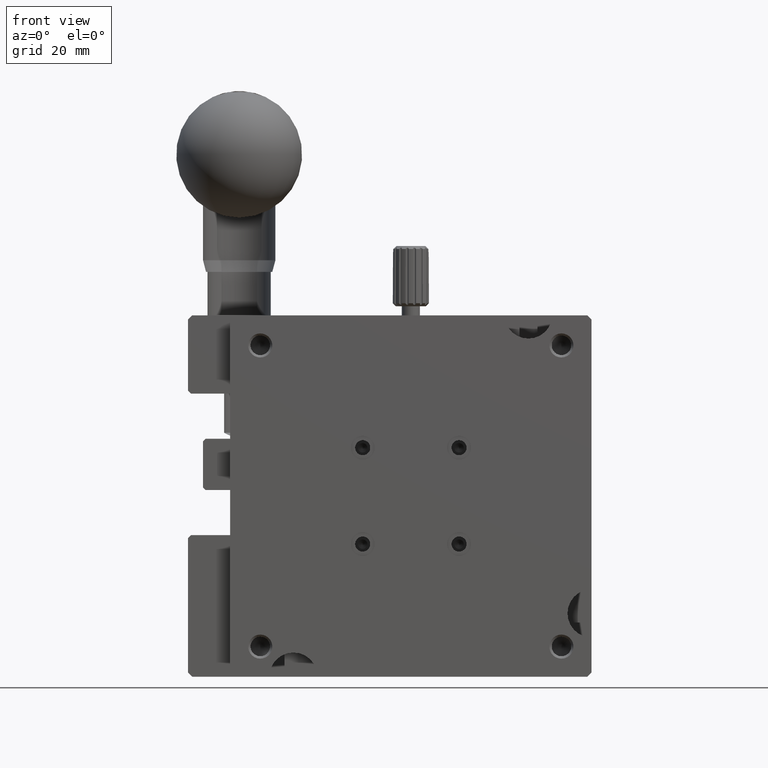
[diagram: clean part render]
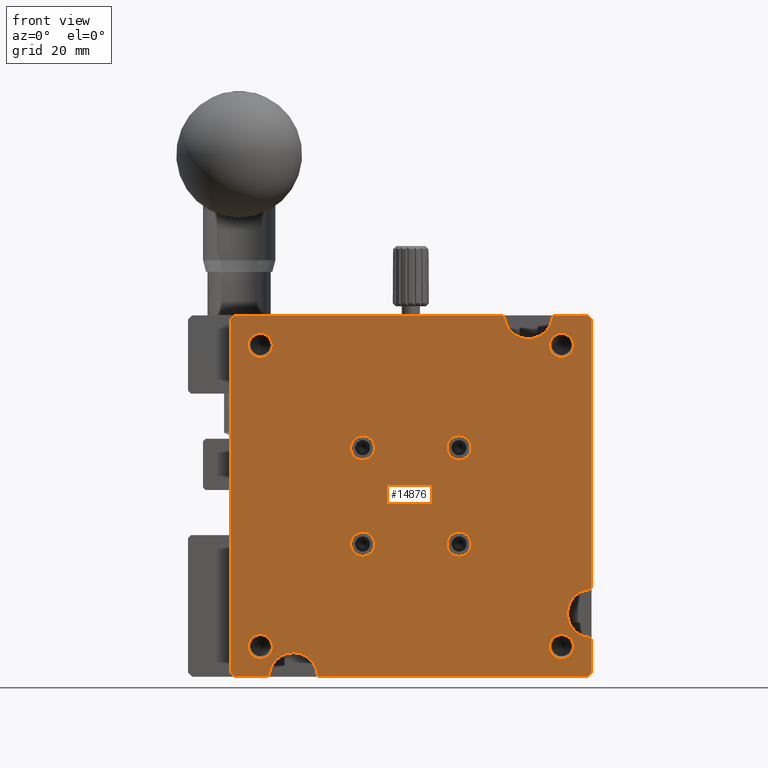
[diagram: same view with one face highlighted and labeled with its STEP entity id]
A machine part, front view. The second image highlights one B-rep face of the part: STEP entity #14876.
In plain terms, the highlighted planar face has unit normal (0, 1, 0).
Its self-contained STEP definition (entity closure, byte-faithful):
#433 = CARTESIAN_POINT ( 'NONE',  ( 59.90974984192649799, 0.000000000000000000, -49.50549683841389736 ) ) ;
#1226 = DIRECTION ( 'NONE',  ( -0.7071067811865450192, 0.000000000000000000, 0.7071067811865500152 ) ) ;
#1396 = ORIENTED_EDGE ( 'NONE', *, *, #82424, .F. ) ;
#1405 = CARTESIAN_POINT ( 'NONE',  ( 0.7100000000000079581, 0.000000000000000000, -60.00000000000000000 ) ) ;
#1500 = AXIS2_PLACEMENT_3D ( 'NONE', #44404, #4473, #4910 ) ;
#2524 = ORIENTED_EDGE ( 'NONE', *, *, #79900, .F. ) ;
#2948 = EDGE_LOOP ( 'NONE', ( #60175 ) ) ;
#3236 = EDGE_CURVE ( 'NONE', #24572, #44923, #14464, .T. ) ;
#3465 = LINE ( 'NONE', #75898, #6076 ) ;
#3985 = CIRCLE ( 'NONE', #28905, 2.000000000016370461 ) ;
#4161 = DIRECTION ( 'NONE',  ( 0.000000000000000000, -0.000000000000000000, 1.000000000000000000 ) ) ;
#4382 = DIRECTION ( 'NONE',  ( 0.000000000000000000, -1.000000000000000000, 0.000000000000000000 ) ) ;
#4473 = DIRECTION ( 'NONE',  ( 0.000000000000000000, -1.000000000000000000, 0.000000000000000000 ) ) ;
#4910 = DIRECTION ( 'NONE',  ( 0.000000000000000000, 0.000000000000000000, -1.000000000000000000 ) ) ;
#5116 = ORIENTED_EDGE ( 'NONE', *, *, #84618, .T. ) ;
#5292 = LINE ( 'NONE', #64321, #10922 ) ;
#5306 = VERTEX_POINT ( 'NONE', #33928 ) ;
#5602 = DIRECTION ( 'NONE',  ( 0.000000000000000000, -1.000000000000000000, 0.000000000000000000 ) ) ;
#5822 = FACE_BOUND ( 'NONE', #84821, .T. ) ;
#6076 = VECTOR ( 'NONE', #10396, 1000.000000000000114 ) ;
#6649 = DIRECTION ( 'NONE',  ( -0.000000000000000000, 0.000000000000000000, -1.000000000000000000 ) ) ;
#6801 = ORIENTED_EDGE ( 'NONE', *, *, #52243, .T. ) ;
#6903 = VECTOR ( 'NONE', #41973, 1000.000000000000114 ) ;
#7180 = DIRECTION ( 'NONE',  ( -1.000000000000000000, -0.000000000000000000, 0.000000000000000000 ) ) ;
#8106 = VERTEX_POINT ( 'NONE', #16177 ) ;
#8457 = CARTESIAN_POINT ( 'NONE',  ( 0.000000000000000000, 0.000000000000000000, 1.084202172485499997E-16 ) ) ;
#8844 = DIRECTION ( 'NONE',  ( -0.7316594712539952194, 0.000000000000000000, 0.6816703148328552286 ) ) ;
#8879 = CARTESIAN_POINT ( 'NONE',  ( 59.72000000000023334, 0.000000000000000000, -45.50999999999972090 ) ) ;
#9377 = EDGE_CURVE ( 'NONE', #50622, #50622, #61906, .T. ) ;
#9711 = CARTESIAN_POINT ( 'NONE',  ( 55.00000000000000000, 5.684341886080801487E-11, -57.00000000001637090 ) ) ;
#9997 = CIRCLE ( 'NONE', #80629, 2.000000000000001776 ) ;
#10054 = DIRECTION ( 'NONE',  ( 0.000000000000000000, 0.000000000000000000, 1.000000000000000000 ) ) ;
#10396 = DIRECTION ( 'NONE',  ( 0.7071067811865474617, 0.000000000000000000, 0.7071067811865474617 ) ) ;
#10867 = VECTOR ( 'NONE', #4161, 1000.000000000000000 ) ;
#10871 = VERTEX_POINT ( 'NONE', #19389 ) ;
#10922 = VECTOR ( 'NONE', #51304, 1000.000000000000000 ) ;
#10930 = VECTOR ( 'NONE', #42600, 1000.000000000000114 ) ;
#11267 = CIRCLE ( 'NONE', #19602, 2.000000000016370461 ) ;
#11494 = ORIENTED_EDGE ( 'NONE', *, *, #47054, .F. ) ;
#11874 = FACE_BOUND ( 'NONE', #76262, .T. ) ;
#12299 = DIRECTION ( 'NONE',  ( 0.000000000000000000, -0.000000000000000000, 1.000000000000000000 ) ) ;
#13089 = ORIENTED_EDGE ( 'NONE', *, *, #9377, .F. ) ;
#13152 = DIRECTION ( 'NONE',  ( 0.000000000000000000, 1.000000000000000000, 0.000000000000000000 ) ) ;
#13277 = VERTEX_POINT ( 'NONE', #1405 ) ;
#13627 = VERTEX_POINT ( 'NONE', #74158 ) ;
#13819 = VERTEX_POINT ( 'NONE', #47630 ) ;
#13964 = CARTESIAN_POINT ( 'NONE',  ( 60.00000000000000000, 0.000000000000000000, -0.7100000000000001865 ) ) ;
#14399 = DIRECTION ( 'NONE',  ( 0.000000000000000000, -1.000000000000000000, 0.000000000000000000 ) ) ;
#14464 = LINE ( 'NONE', #82086, #78393 ) ;
#14497 = VERTEX_POINT ( 'NONE', #47110 ) ;
#14782 = EDGE_LOOP ( 'NONE', ( #41892 ) ) ;
#14786 = DIRECTION ( 'NONE',  ( 0.000000000000000000, 0.000000000000000000, -1.000000000000000000 ) ) ;
#14876 = ADVANCED_FACE ( 'NONE', ( #51822, #5822, #11874, #71757, #39195, #18791, #65704, #31361, #39621 ), #58769, .F. ) ;
#14937 = CARTESIAN_POINT ( 'NONE',  ( 59.70000000000001705, 0.000000000000000000, -53.48800000000000665 ) ) ;
#15658 = DIRECTION ( 'NONE',  ( 0.000000000000000000, 0.000000000000000000, -1.000000000000000000 ) ) ;
#15803 = CARTESIAN_POINT ( 'NONE',  ( 59.70000000000910489, 0.000000000000000000, -45.51099999999929935 ) ) ;
#16126 = EDGE_CURVE ( 'NONE', #33878, #79592, #62737, .T. ) ;
#16177 = CARTESIAN_POINT ( 'NONE',  ( 14.78900000000000148, 0.000000000000000000, -60.00000000000000000 ) ) ;
#16497 = CARTESIAN_POINT ( 'NONE',  ( 49.50999999999999801, 0.000000000000000000, 0.1189462972740070040 ) ) ;
#17013 = VERTEX_POINT ( 'NONE', #83047 ) ;
#17405 = EDGE_LOOP ( 'NONE', ( #66917, #33285, #5116, #61746, #2524, #55381, #44358, #6801, #80315, #44916, #84230, #85662, #27058, #64877, #27664, #11494, #75721, #32925, #63277, #73615, #22436, #76773 ) ) ;
#17915 = CARTESIAN_POINT ( 'NONE',  ( 0.000000000000000000, 0.000000000000000000, -0.7100000000000009637 ) ) ;
#17964 = EDGE_CURVE ( 'NONE', #55689, #40616, #68241, .T. ) ;
#18099 = VECTOR ( 'NONE', #59381, 1000.000000000000000 ) ;
#18283 = EDGE_CURVE ( 'NONE', #65778, #65778, #3985, .T. ) ;
#18598 = CIRCLE ( 'NONE', #25534, 1.999999999948149254 ) ;
#18791 = FACE_BOUND ( 'NONE', #2948, .T. ) ;
#18979 = CARTESIAN_POINT ( 'NONE',  ( 0.000000000000000000, 0.000000000000000000, -60.00000000000000000 ) ) ;
#19389 = CARTESIAN_POINT ( 'NONE',  ( 60.00000000000000711, 0.000000000000000000, -53.78899999999999437 ) ) ;
#19602 = AXIS2_PLACEMENT_3D ( 'NONE', #72261, #79613, #40114 ) ;
#21448 = CARTESIAN_POINT ( 'NONE',  ( 59.70000000000000284, 0.000000000000000000, -53.48799999999999955 ) ) ;
#22301 = VECTOR ( 'NONE', #6649, 1000.000000000000000 ) ;
#22376 = LINE ( 'NONE', #49324, #73410 ) ;
#22436 = ORIENTED_EDGE ( 'NONE', *, *, #85682, .T. ) ;
#22597 = DIRECTION ( 'NONE',  ( 0.000000000000000000, 0.000000000000000000, -1.000000000000000000 ) ) ;
#22723 = VECTOR ( 'NONE', #70447, 1000.000000000000000 ) ;
#23672 = CARTESIAN_POINT ( 'NONE',  ( 22.00000000000000000, 0.000000000000000000, -22.00000000000000000 ) ) ;
#23811 = CARTESIAN_POINT ( 'NONE',  ( 60.00000000000000000, -2.602085213965210642E-15, -45.21000000000000085 ) ) ;
#23924 = EDGE_CURVE ( 'NONE', #48434, #77954, #56786, .T. ) ;
#24572 = VERTEX_POINT ( 'NONE', #81285 ) ;
#24695 = ORIENTED_EDGE ( 'NONE', *, *, #44040, .F. ) ;
#25033 = DIRECTION ( 'NONE',  ( 0.000000000000000000, 0.000000000000000000, -1.000000000000000000 ) ) ;
#25534 = AXIS2_PLACEMENT_3D ( 'NONE', #61704, #14399, #40886 ) ;
#26270 = CARTESIAN_POINT ( 'NONE',  ( 6.510999999999985022, -1.734723475976807094E-15, -59.69999999999998863 ) ) ;
#26350 = CIRCLE ( 'NONE', #1500, 4.000000000000003553 ) ;
#27058 = ORIENTED_EDGE ( 'NONE', *, *, #67409, .T. ) ;
#27166 = VERTEX_POINT ( 'NONE', #70687 ) ;
#27224 = LINE ( 'NONE', #73679, #6903 ) ;
#27519 = VERTEX_POINT ( 'NONE', #80889 ) ;
#27664 = ORIENTED_EDGE ( 'NONE', *, *, #67317, .T. ) ;
#27682 = EDGE_CURVE ( 'NONE', #72971, #17013, #5292, .T. ) ;
#28905 = AXIS2_PLACEMENT_3D ( 'NONE', #65913, #5602, #38983 ) ;
#29129 = DIRECTION ( 'NONE',  ( 0.000000000000000000, 1.000000000000000000, 0.000000000000000000 ) ) ;
#29580 = VERTEX_POINT ( 'NONE', #14937 ) ;
#29630 = CARTESIAN_POINT ( 'NONE',  ( 22.00000000000000000, 0.000000000000000000, -24.00000000000000000 ) ) ;
#30531 = EDGE_LOOP ( 'NONE', ( #45999 ) ) ;
#31276 = VERTEX_POINT ( 'NONE', #80307 ) ;
#31361 = FACE_BOUND ( 'NONE', #37838, .T. ) ;
#31689 = DIRECTION ( 'NONE',  ( 0.000000000000000000, -1.000000000000000000, 0.000000000000000000 ) ) ;
#32846 = LINE ( 'NONE', #18979, #18099 ) ;
#32925 = ORIENTED_EDGE ( 'NONE', *, *, #74351, .F. ) ;
#33285 = ORIENTED_EDGE ( 'NONE', *, *, #23924, .F. ) ;
#33878 = VERTEX_POINT ( 'NONE', #44760 ) ;
#33928 = CARTESIAN_POINT ( 'NONE',  ( 0.7099999999999999645, 0.000000000000000000, -5.416677968589100837E-32 ) ) ;
#34440 = DIRECTION ( 'NONE',  ( 1.000000000000000000, 0.000000000000000000, -0.000000000000000000 ) ) ;
#34640 = EDGE_LOOP ( 'NONE', ( #56540 ) ) ;
#34734 = CARTESIAN_POINT ( 'NONE',  ( 38.00000000000000000, 0.000000000000000000, -38.00000000000000000 ) ) ;
#35118 = EDGE_CURVE ( 'NONE', #13627, #13277, #45385, .T. ) ;
#36184 = LINE ( 'NONE', #69606, #50554 ) ;
#36545 = AXIS2_PLACEMENT_3D ( 'NONE', #16497, #4382, #15658 ) ;
#36745 = CIRCLE ( 'NONE', #39555, 3.999999998536091006 ) ;
#37515 = VECTOR ( 'NONE', #64192, 1000.000000000000000 ) ;
#37838 = EDGE_LOOP ( 'NONE', ( #1396 ) ) ;
#38414 = CARTESIAN_POINT ( 'NONE',  ( 0.000000000000000000, 0.000000000000000000, -60.00000000000000000 ) ) ;
#38491 = AXIS2_PLACEMENT_3D ( 'NONE', #77400, #13152, #12299 ) ;
#38511 = CARTESIAN_POINT ( 'NONE',  ( 22.00000000000000000, 0.000000000000000000, -38.00000000000000000 ) ) ;
#38665 = DIRECTION ( 'NONE',  ( 0.000000000000000000, 0.000000000000000000, -1.000000000000000000 ) ) ;
#38983 = DIRECTION ( 'NONE',  ( 0.000000000000000000, 0.000000000000000000, -1.000000000000000000 ) ) ;
#39026 = DIRECTION ( 'NONE',  ( 0.000000000000000000, 1.000000000000000000, 0.000000000000000000 ) ) ;
#39115 = EDGE_CURVE ( 'NONE', #45831, #45831, #9997, .T. ) ;
#39195 = FACE_BOUND ( 'NONE', #76248, .T. ) ;
#39381 = DIRECTION ( 'NONE',  ( 0.7071067811865500152, 0.000000000000000000, -0.7071067811865450192 ) ) ;
#39555 = AXIS2_PLACEMENT_3D ( 'NONE', #433, #39026, #65537 ) ;
#39621 = FACE_BOUND ( 'NONE', #34640, .T. ) ;
#39806 = CARTESIAN_POINT ( 'NONE',  ( 0.7100000000000009637, 0.000000000000000000, -60.00000000000000000 ) ) ;
#40114 = DIRECTION ( 'NONE',  ( 0.000000000000000000, 0.000000000000000000, -1.000000000000000000 ) ) ;
#40141 = VECTOR ( 'NONE', #7180, 1000.000000000000000 ) ;
#40424 = AXIS2_PLACEMENT_3D ( 'NONE', #43465, #29129, #10054 ) ;
#40616 = VERTEX_POINT ( 'NONE', #23811 ) ;
#40886 = DIRECTION ( 'NONE',  ( 0.000000000000000000, 0.000000000000000000, -1.000000000000000000 ) ) ;
#41277 = DIRECTION ( 'NONE',  ( 0.000000000000000000, -1.000000000000000000, 0.000000000000000000 ) ) ;
#41892 = ORIENTED_EDGE ( 'NONE', *, *, #18283, .F. ) ;
#41973 = DIRECTION ( 'NONE',  ( -0.7082823511173208519, 0.000000000000000000, -0.7059292536052887979 ) ) ;
#42350 = CARTESIAN_POINT ( 'NONE',  ( 0.000000000000000000, 0.000000000000000000, 0.000000000000000000 ) ) ;
#42374 = CARTESIAN_POINT ( 'NONE',  ( 22.00000000000000000, 0.000000000000000000, -40.00000000000000000 ) ) ;
#42600 = DIRECTION ( 'NONE',  ( 0.6823182503599929394, 0.000000000000000000, 0.7310552682428859139 ) ) ;
#42873 = AXIS2_PLACEMENT_3D ( 'NONE', #84383, #64038, #83504 ) ;
#43465 = CARTESIAN_POINT ( 'NONE',  ( 10.50886380215709970, 0.000000000000000000, -60.10801361977959800 ) ) ;
#43555 = VERTEX_POINT ( 'NONE', #29630 ) ;
#43670 = DIRECTION ( 'NONE',  ( 0.7299177350911048023, 0.000000000000000000, -0.6835350027609937706 ) ) ;
#44040 = EDGE_CURVE ( 'NONE', #27519, #27519, #60028, .T. ) ;
#44358 = ORIENTED_EDGE ( 'NONE', *, *, #82666, .F. ) ;
#44404 = CARTESIAN_POINT ( 'NONE',  ( 60.00309693169000269, 0.000000000000000000, -49.49950000000000472 ) ) ;
#44760 = CARTESIAN_POINT ( 'NONE',  ( 7.453889935837842984E-16, 0.000000000000000000, -59.29000000000000625 ) ) ;
#44916 = ORIENTED_EDGE ( 'NONE', *, *, #54367, .T. ) ;
#44923 = VERTEX_POINT ( 'NONE', #78484 ) ;
#45091 = CARTESIAN_POINT ( 'NONE',  ( 60.00000000000000000, 0.000000000000000000, 0.000000000000000000 ) ) ;
#45252 = VERTEX_POINT ( 'NONE', #15803 ) ;
#45384 = CARTESIAN_POINT ( 'NONE',  ( 53.78899999999998727, 0.000000000000000000, 1.788933584601082316E-14 ) ) ;
#45385 = LINE ( 'NONE', #38414, #40141 ) ;
#45580 = EDGE_CURVE ( 'NONE', #13819, #51028, #3465, .T. ) ;
#45831 = VERTEX_POINT ( 'NONE', #72275 ) ;
#45999 = ORIENTED_EDGE ( 'NONE', *, *, #39115, .F. ) ;
#46284 = CIRCLE ( 'NONE', #36545, 4.000000000000000000 ) ;
#47054 = EDGE_CURVE ( 'NONE', #24572, #31276, #46284, .T. ) ;
#47110 = CARTESIAN_POINT ( 'NONE',  ( 5.000000000000000000, 5.684341886080801487E-11, -6.999999999948158802 ) ) ;
#47630 = CARTESIAN_POINT ( 'NONE',  ( 59.28999999999999915, -1.734723475976807094E-15, -60.00000000000000000 ) ) ;
#48434 = VERTEX_POINT ( 'NONE', #79944 ) ;
#49176 = ORIENTED_EDGE ( 'NONE', *, *, #80921, .F. ) ;
#49324 = CARTESIAN_POINT ( 'NONE',  ( 14.78899999999999970, 0.000000000000000000, -60.00000000000000000 ) ) ;
#50437 = EDGE_CURVE ( 'NONE', #5306, #79592, #84306, .T. ) ;
#50554 = VECTOR ( 'NONE', #76980, 1000.000000000000114 ) ;
#50622 = VERTEX_POINT ( 'NONE', #42374 ) ;
#51028 = VERTEX_POINT ( 'NONE', #63750 ) ;
#51067 = DIRECTION ( 'NONE',  ( 0.000000000000000000, -1.000000000000000000, 0.000000000000000000 ) ) ;
#51304 = DIRECTION ( 'NONE',  ( 1.000000000000000000, 0.000000000000000000, -0.000000000000000000 ) ) ;
#51537 = EDGE_CURVE ( 'NONE', #13627, #77954, #36184, .T. ) ;
#51822 = FACE_OUTER_BOUND ( 'NONE', #17405, .T. ) ;
#52243 = EDGE_CURVE ( 'NONE', #10871, #29580, #74408, .T. ) ;
#52594 = CARTESIAN_POINT ( 'NONE',  ( 38.00000000000000000, 0.000000000000000000, -22.00000000000000000 ) ) ;
#54064 = DIRECTION ( 'NONE',  ( -0.7059292536053188849, 0.000000000000000000, 0.7082823511172908759 ) ) ;
#54367 = EDGE_CURVE ( 'NONE', #45252, #55689, #36745, .T. ) ;
#54377 = DIRECTION ( 'NONE',  ( 0.000000000000000000, -1.000000000000000000, 0.000000000000000000 ) ) ;
#54761 = VECTOR ( 'NONE', #54064, 1000.000000000000000 ) ;
#55381 = ORIENTED_EDGE ( 'NONE', *, *, #45580, .T. ) ;
#55689 = VERTEX_POINT ( 'NONE', #8879 ) ;
#56404 = AXIS2_PLACEMENT_3D ( 'NONE', #38511, #57226, #25033 ) ;
#56540 = ORIENTED_EDGE ( 'NONE', *, *, #57240, .F. ) ;
#56765 = AXIS2_PLACEMENT_3D ( 'NONE', #68648, #54377, #22597 ) ;
#56786 = CIRCLE ( 'NONE', #42873, 3.999999999999996447 ) ;
#57043 = VERTEX_POINT ( 'NONE', #9711 ) ;
#57226 = DIRECTION ( 'NONE',  ( 0.000000000000000000, -1.000000000000000000, 0.000000000000000000 ) ) ;
#57240 = EDGE_CURVE ( 'NONE', #80463, #80463, #18598, .T. ) ;
#57567 = CARTESIAN_POINT ( 'NONE',  ( 5.000000000000000000, 5.684341886080801487E-11, -57.00000000001637090 ) ) ;
#58021 = DIRECTION ( 'NONE',  ( 0.000000000000000000, 0.000000000000000000, -1.000000000000000000 ) ) ;
#58769 = PLANE ( 'NONE',  #38491 ) ;
#59381 = DIRECTION ( 'NONE',  ( -1.000000000000000000, -0.000000000000000000, 0.000000000000000000 ) ) ;
#59488 = CIRCLE ( 'NONE', #56765, 1.999999999948158802 ) ;
#60028 = CIRCLE ( 'NONE', #82113, 2.000000000000001776 ) ;
#60175 = ORIENTED_EDGE ( 'NONE', *, *, #64576, .F. ) ;
#60943 = VECTOR ( 'NONE', #34440, 1000.000000000000000 ) ;
#60947 = LINE ( 'NONE', #8457, #60943 ) ;
#61704 = CARTESIAN_POINT ( 'NONE',  ( 55.00000000000000000, 5.684341886080801487E-11, -5.000000000000009770 ) ) ;
#61746 = ORIENTED_EDGE ( 'NONE', *, *, #66562, .T. ) ;
#61906 = CIRCLE ( 'NONE', #56404, 2.000000000000001776 ) ;
#62602 = CIRCLE ( 'NONE', #40424, 3.999999999363783143 ) ;
#62737 = LINE ( 'NONE', #42350, #10867 ) ;
#63277 = ORIENTED_EDGE ( 'NONE', *, *, #50437, .T. ) ;
#63750 = CARTESIAN_POINT ( 'NONE',  ( 60.00000000000000000, -1.734723475976807094E-15, -59.28999999999999204 ) ) ;
#64038 = DIRECTION ( 'NONE',  ( 0.000000000000000000, -1.000000000000000000, 0.000000000000000000 ) ) ;
#64192 = DIRECTION ( 'NONE',  ( -0.000000000000000000, 0.000000000000000000, -1.000000000000000000 ) ) ;
#64321 = CARTESIAN_POINT ( 'NONE',  ( 0.000000000000000000, 0.000000000000000000, 3.252606517456510147E-15 ) ) ;
#64576 = EDGE_CURVE ( 'NONE', #14497, #14497, #59488, .T. ) ;
#64877 = ORIENTED_EDGE ( 'NONE', *, *, #27682, .F. ) ;
#65025 = LINE ( 'NONE', #39806, #69521 ) ;
#65047 = LINE ( 'NONE', #45091, #37515 ) ;
#65537 = DIRECTION ( 'NONE',  ( 0.000000000000000000, 0.000000000000000000, 1.000000000000000000 ) ) ;
#65704 = FACE_BOUND ( 'NONE', #14782, .T. ) ;
#65778 = VERTEX_POINT ( 'NONE', #57567 ) ;
#65913 = CARTESIAN_POINT ( 'NONE',  ( 5.000000000000000000, 5.684341886080801487E-11, -55.00000000000000000 ) ) ;
#66562 = EDGE_CURVE ( 'NONE', #27166, #8106, #22376, .T. ) ;
#66917 = ORIENTED_EDGE ( 'NONE', *, *, #51537, .T. ) ;
#67317 = EDGE_CURVE ( 'NONE', #72971, #31276, #27224, .T. ) ;
#67409 = EDGE_CURVE ( 'NONE', #82948, #17013, #74516, .T. ) ;
#68036 = CARTESIAN_POINT ( 'NONE',  ( 59.28999999999999915, 0.000000000000000000, 0.000000000000000000 ) ) ;
#68241 = LINE ( 'NONE', #80802, #10930 ) ;
#68648 = CARTESIAN_POINT ( 'NONE',  ( 5.000000000000000000, 5.684341886080801487E-11, -5.000000000000000000 ) ) ;
#69409 = CIRCLE ( 'NONE', #73585, 2.000000000000001776 ) ;
#69521 = VECTOR ( 'NONE', #39381, 1000.000000000000000 ) ;
#69606 = CARTESIAN_POINT ( 'NONE',  ( 6.510999999999969923, -3.469446951953614189E-15, -59.70000000000000284 ) ) ;
#70447 = DIRECTION ( 'NONE',  ( -0.7071067811865470176, 0.000000000000000000, -0.7071067811865480168 ) ) ;
#70609 = VECTOR ( 'NONE', #1226, 1000.000000000000000 ) ;
#70687 = CARTESIAN_POINT ( 'NONE',  ( 14.49000000000009614, 0.000000000000000000, -59.72000000000002728 ) ) ;
#70858 = LINE ( 'NONE', #77798, #22301 ) ;
#71757 = FACE_BOUND ( 'NONE', #30531, .T. ) ;
#72261 = CARTESIAN_POINT ( 'NONE',  ( 55.00000000000000000, 5.684341886080801487E-11, -55.00000000000000000 ) ) ;
#72275 = CARTESIAN_POINT ( 'NONE',  ( 38.00000000000000000, 0.000000000000000000, -40.00000000000000000 ) ) ;
#72971 = VERTEX_POINT ( 'NONE', #45384 ) ;
#73410 = VECTOR ( 'NONE', #43670, 999.9999999999998863 ) ;
#73585 = AXIS2_PLACEMENT_3D ( 'NONE', #23672, #51067, #58021 ) ;
#73615 = ORIENTED_EDGE ( 'NONE', *, *, #16126, .F. ) ;
#73679 = CARTESIAN_POINT ( 'NONE',  ( 53.48799999999999955, 0.000000000000000000, -0.2999999999999310440 ) ) ;
#74158 = CARTESIAN_POINT ( 'NONE',  ( 6.210000000000004405, -2.602085213965210642E-15, -60.00000000000000000 ) ) ;
#74351 = EDGE_CURVE ( 'NONE', #5306, #44923, #60947, .T. ) ;
#74408 = LINE ( 'NONE', #21448, #54761 ) ;
#74516 = LINE ( 'NONE', #68036, #70609 ) ;
#75721 = ORIENTED_EDGE ( 'NONE', *, *, #3236, .T. ) ;
#75898 = CARTESIAN_POINT ( 'NONE',  ( 60.00000000000000000, -3.469446951953614189E-15, -59.28999999999999915 ) ) ;
#76248 = EDGE_LOOP ( 'NONE', ( #24695 ) ) ;
#76262 = EDGE_LOOP ( 'NONE', ( #13089 ) ) ;
#76773 = ORIENTED_EDGE ( 'NONE', *, *, #35118, .F. ) ;
#76980 = DIRECTION ( 'NONE',  ( 0.7082823511172883224, 0.000000000000000000, 0.7059292536053215494 ) ) ;
#77400 = CARTESIAN_POINT ( 'NONE',  ( 0.000000000000000000, 0.000000000000000000, 0.000000000000000000 ) ) ;
#77798 = CARTESIAN_POINT ( 'NONE',  ( 60.00000000000000000, 0.000000000000000000, 0.000000000000000000 ) ) ;
#77954 = VERTEX_POINT ( 'NONE', #26270 ) ;
#78393 = VECTOR ( 'NONE', #8844, 1000.000000000000114 ) ;
#78484 = CARTESIAN_POINT ( 'NONE',  ( 45.21000000000000085, -2.602085213965210642E-15, 1.282451938128024601E-15 ) ) ;
#78969 = EDGE_CURVE ( 'NONE', #45252, #29580, #26350, .T. ) ;
#79592 = VERTEX_POINT ( 'NONE', #85039 ) ;
#79613 = DIRECTION ( 'NONE',  ( 0.000000000000000000, -1.000000000000000000, 0.000000000000000000 ) ) ;
#79900 = EDGE_CURVE ( 'NONE', #13819, #8106, #32846, .T. ) ;
#79944 = CARTESIAN_POINT ( 'NONE',  ( 14.48799999999975796, 0.000000000000000000, -59.69999999999664198 ) ) ;
#80032 = CARTESIAN_POINT ( 'NONE',  ( 55.00000000000000000, 5.684341886080801487E-11, -6.999999999948158802 ) ) ;
#80307 = CARTESIAN_POINT ( 'NONE',  ( 53.48800000000006349, 0.000000000000000000, -0.2999999999999033995 ) ) ;
#80315 = ORIENTED_EDGE ( 'NONE', *, *, #78969, .F. ) ;
#80463 = VERTEX_POINT ( 'NONE', #80032 ) ;
#80629 = AXIS2_PLACEMENT_3D ( 'NONE', #34734, #41277, #14786 ) ;
#80641 = EDGE_CURVE ( 'NONE', #82948, #40616, #65047, .T. ) ;
#80802 = CARTESIAN_POINT ( 'NONE',  ( 60.00000000000000000, -3.469446951953614189E-15, -45.21000000000000085 ) ) ;
#80889 = CARTESIAN_POINT ( 'NONE',  ( 38.00000000000000000, 0.000000000000000000, -24.00000000000000000 ) ) ;
#80921 = EDGE_CURVE ( 'NONE', #43555, #43555, #69409, .T. ) ;
#81285 = CARTESIAN_POINT ( 'NONE',  ( 45.53199999999993253, 0.000000000000000000, -0.2999999999999067302 ) ) ;
#82086 = CARTESIAN_POINT ( 'NONE',  ( 45.21000000000000085, -3.469446951953614189E-15, 2.768314089472589949E-15 ) ) ;
#82113 = AXIS2_PLACEMENT_3D ( 'NONE', #52594, #31689, #38665 ) ;
#82424 = EDGE_CURVE ( 'NONE', #57043, #57043, #11267, .T. ) ;
#82666 = EDGE_CURVE ( 'NONE', #10871, #51028, #70858, .T. ) ;
#82948 = VERTEX_POINT ( 'NONE', #13964 ) ;
#83047 = CARTESIAN_POINT ( 'NONE',  ( 59.29000000000000625, 0.000000000000000000, -2.574980159653064156E-16 ) ) ;
#83504 = DIRECTION ( 'NONE',  ( 0.000000000000000000, 0.000000000000000000, -1.000000000000000000 ) ) ;
#84230 = ORIENTED_EDGE ( 'NONE', *, *, #17964, .T. ) ;
#84306 = LINE ( 'NONE', #17915, #22723 ) ;
#84383 = CARTESIAN_POINT ( 'NONE',  ( 10.49949999999999939, 0.000000000000000000, -60.00309693169000269 ) ) ;
#84618 = EDGE_CURVE ( 'NONE', #48434, #27166, #62602, .T. ) ;
#84821 = EDGE_LOOP ( 'NONE', ( #49176 ) ) ;
#85039 = CARTESIAN_POINT ( 'NONE',  ( 1.355252715606880851E-17, 0.000000000000000000, -0.7100000000000011857 ) ) ;
#85662 = ORIENTED_EDGE ( 'NONE', *, *, #80641, .F. ) ;
#85682 = EDGE_CURVE ( 'NONE', #33878, #13277, #65025, .T. ) ;